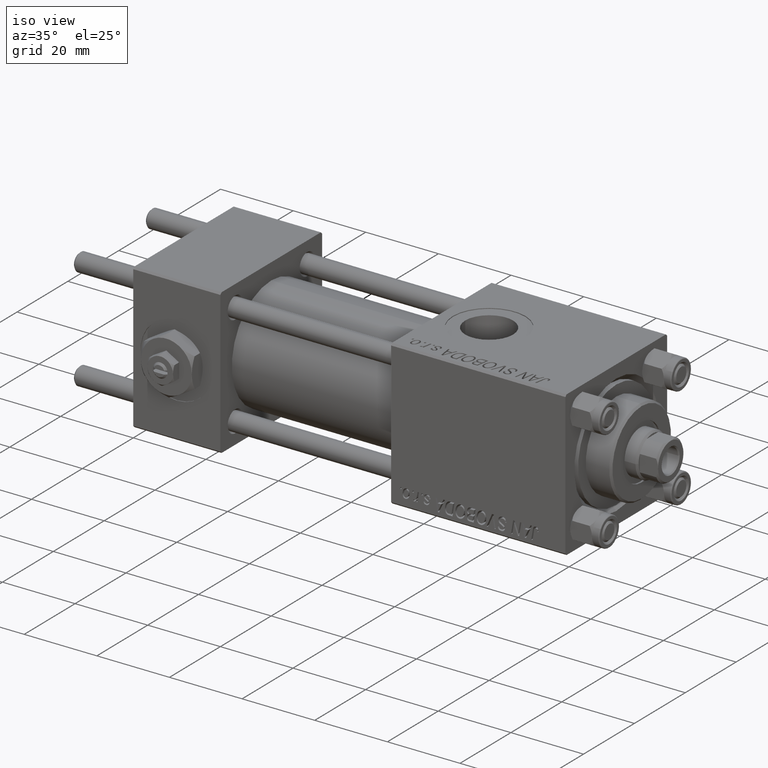
[diagram: clean part render]
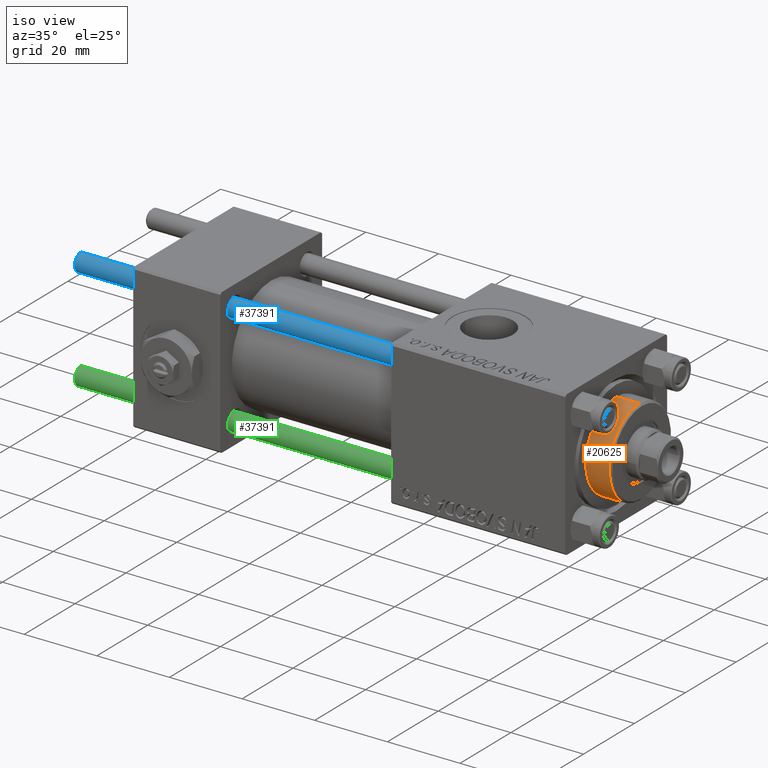
[diagram: same view with three faces highlighted in distinct colors, each labeled with its STEP entity id]
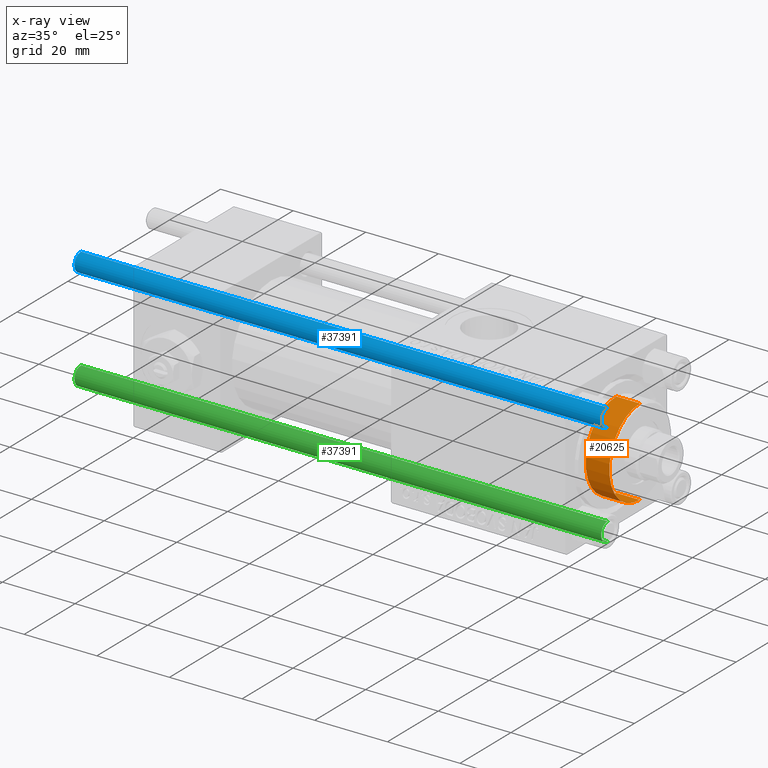
[diagram: x-ray of the same camera — body ghosted, the three highlighted faces saturated]
A machine part, iso view with three faces highlighted in distinct colors.
The next image is the same camera in x-ray (body ghosted, the three faces saturated) — at least one of them is partly hidden behind the body in this view.
Their STEP definitions:

[orange] entity #20625 — the highlighted cylindrical surface (partial cylindrical patch) has radius 12 mm, axis along (-1, -0, 0).
#4524 = CARTESIAN_POINT ( 'NONE',  ( 12.00000000000000178, 1.469576158976824144E-15, 35.19999999999999574 ) ) ;
#6368 = CARTESIAN_POINT ( 'NONE',  ( -12.00000000000000178, 0.000000000000000000, 35.19999999999999574 ) ) ;
#6909 = DIRECTION ( 'NONE',  ( 0.000000000000000000, 0.000000000000000000, 1.000000000000000000 ) ) ;
#7834 = VERTEX_POINT ( 'NONE', #4524 ) ;
#10142 = DIRECTION ( 'NONE',  ( -0.000000000000000000, -0.000000000000000000, -1.000000000000000000 ) ) ;
#10552 = CYLINDRICAL_SURFACE ( 'NONE', #13823, 12.00000000000000178 ) ;
#12129 = DIRECTION ( 'NONE',  ( 1.000000000000000000, 0.000000000000000000, 0.000000000000000000 ) ) ;
#13823 = AXIS2_PLACEMENT_3D ( 'NONE', #33968, #49852, #17830 ) ;
#14078 = DIRECTION ( 'NONE',  ( 1.000000000000000000, 0.000000000000000000, 0.000000000000000000 ) ) ;
#15444 = ORIENTED_EDGE ( 'NONE', *, *, #37216, .T. ) ;
#16842 = ORIENTED_EDGE ( 'NONE', *, *, #21995, .F. ) ;
#17758 = VECTOR ( 'NONE', #10142, 1000.000000000000000 ) ;
#17830 = DIRECTION ( 'NONE',  ( -1.000000000000000000, 0.000000000000000000, 0.000000000000000000 ) ) ;
#19146 = CARTESIAN_POINT ( 'NONE',  ( 12.00000000000000178, 1.469576158976824144E-15, 35.70000000000000284 ) ) ;
#20507 = ORIENTED_EDGE ( 'NONE', *, *, #24453, .T. ) ;
#20625 = ADVANCED_FACE ( 'NONE', ( #46213 ), #10552, .T. ) ;
#20991 = EDGE_CURVE ( 'NONE', #7834, #45486, #43717, .T. ) ;
#21278 = AXIS2_PLACEMENT_3D ( 'NONE', #29947, #21874, #14078 ) ;
#21849 = LINE ( 'NONE', #26956, #17758 ) ;
#21874 = DIRECTION ( 'NONE',  ( 0.000000000000000000, 0.000000000000000000, -1.000000000000000000 ) ) ;
#21995 = EDGE_CURVE ( 'NONE', #7834, #29601, #38947, .T. ) ;
#22411 = EDGE_LOOP ( 'NONE', ( #16842, #35112, #15444, #20507 ) ) ;
#23903 = CIRCLE ( 'NONE', #26396, 12.00000000000000178 ) ;
#24453 = EDGE_CURVE ( 'NONE', #45039, #29601, #23903, .T. ) ;
#26396 = AXIS2_PLACEMENT_3D ( 'NONE', #42557, #6909, #12129 ) ;
#26956 = CARTESIAN_POINT ( 'NONE',  ( -12.00000000000000178, 0.000000000000000000, 35.70000000000000284 ) ) ;
#27867 = CARTESIAN_POINT ( 'NONE',  ( 12.00000000000000178, 1.469576158976824144E-15, 28.69999999999999929 ) ) ;
#28807 = VECTOR ( 'NONE', #35030, 1000.000000000000000 ) ;
#29601 = VERTEX_POINT ( 'NONE', #27867 ) ;
#29947 = CARTESIAN_POINT ( 'NONE',  ( 0.000000000000000000, 0.000000000000000000, 35.19999999999999574 ) ) ;
#33968 = CARTESIAN_POINT ( 'NONE',  ( 0.000000000000000000, 0.000000000000000000, 35.70000000000000284 ) ) ;
#35030 = DIRECTION ( 'NONE',  ( -0.000000000000000000, -0.000000000000000000, -1.000000000000000000 ) ) ;
#35112 = ORIENTED_EDGE ( 'NONE', *, *, #20991, .T. ) ;
#37216 = EDGE_CURVE ( 'NONE', #45486, #45039, #21849, .T. ) ;
#38947 = LINE ( 'NONE', #19146, #28807 ) ;
#42557 = CARTESIAN_POINT ( 'NONE',  ( 0.000000000000000000, 0.000000000000000000, 28.69999999999999929 ) ) ;
#43717 = CIRCLE ( 'NONE', #21278, 12.00000000000000178 ) ;
#45039 = VERTEX_POINT ( 'NONE', #48095 ) ;
#45486 = VERTEX_POINT ( 'NONE', #6368 ) ;
#46213 = FACE_OUTER_BOUND ( 'NONE', #22411, .T. ) ;
#48095 = CARTESIAN_POINT ( 'NONE',  ( -12.00000000000000178, 0.000000000000000000, 28.69999999999999929 ) ) ;
#49852 = DIRECTION ( 'NONE',  ( -0.000000000000000000, -0.000000000000000000, -1.000000000000000000 ) ) ;

[blue] entity #37391 — the highlighted cylindrical surface (edge-blend (fillet) strip) has radius 2.5 mm, axis along (1, -0, 0).
#244 = DIRECTION ( 'NONE',  ( -0.000000000000000000, -0.000000000000000000, -1.000000000000000000 ) ) ;
#924 = VERTEX_POINT ( 'NONE', #15930 ) ;
#4747 = AXIS2_PLACEMENT_3D ( 'NONE', #15785, #23585, #44149 ) ;
#7774 = EDGE_LOOP ( 'NONE', ( #21829, #50586, #30102, #50283 ) ) ;
#8628 = AXIS2_PLACEMENT_3D ( 'NONE', #29270, #37870, #41266 ) ;
#12630 = CARTESIAN_POINT ( 'NONE',  ( 0.000000000000000000, 0.000000000000000000, 145.5000000000000284 ) ) ;
#13029 = VECTOR ( 'NONE', #38579, 1000.000000000000000 ) ;
#15785 = CARTESIAN_POINT ( 'NONE',  ( 0.000000000000000000, 0.000000000000000000, 0.5000000000000559552 ) ) ;
#15930 = CARTESIAN_POINT ( 'NONE',  ( 2.500000000000000000, 3.061616997868383141E-16, 145.5000000000000284 ) ) ;
#17615 = CARTESIAN_POINT ( 'NONE',  ( 2.500000000000000000, 3.061616997868383141E-16, 0.5000000000000559552 ) ) ;
#20262 = LINE ( 'NONE', #47092, #20323 ) ;
#20323 = VECTOR ( 'NONE', #244, 1000.000000000000000 ) ;
#21829 = ORIENTED_EDGE ( 'NONE', *, *, #36514, .T. ) ;
#23585 = DIRECTION ( 'NONE',  ( -0.000000000000000000, -0.000000000000000000, 1.000000000000000000 ) ) ;
#23754 = EDGE_CURVE ( 'NONE', #26342, #29791, #27162, .T. ) ;
#25606 = CARTESIAN_POINT ( 'NONE',  ( 2.500000000000000000, 3.061616997868383141E-16, 146.0000000000000000 ) ) ;
#25640 = CYLINDRICAL_SURFACE ( 'NONE', #8628, 2.500000000000000000 ) ;
#26342 = VERTEX_POINT ( 'NONE', #17615 ) ;
#27162 = CIRCLE ( 'NONE', #4747, 2.500000000000000000 ) ;
#29013 = DIRECTION ( 'NONE',  ( 0.000000000000000000, 0.000000000000000000, -1.000000000000000000 ) ) ;
#29270 = CARTESIAN_POINT ( 'NONE',  ( 0.000000000000000000, 0.000000000000000000, 146.0000000000000000 ) ) ;
#29791 = VERTEX_POINT ( 'NONE', #41594 ) ;
#30102 = ORIENTED_EDGE ( 'NONE', *, *, #23754, .T. ) ;
#30641 = VERTEX_POINT ( 'NONE', #46895 ) ;
#33175 = FACE_OUTER_BOUND ( 'NONE', #7774, .T. ) ;
#36514 = EDGE_CURVE ( 'NONE', #30641, #924, #48459, .T. ) ;
#37391 = ADVANCED_FACE ( 'NONE', ( #33175 ), #25640, .T. ) ;
#37870 = DIRECTION ( 'NONE',  ( -0.000000000000000000, -0.000000000000000000, -1.000000000000000000 ) ) ;
#38493 = AXIS2_PLACEMENT_3D ( 'NONE', #12630, #29013, #44901 ) ;
#38579 = DIRECTION ( 'NONE',  ( -0.000000000000000000, -0.000000000000000000, -1.000000000000000000 ) ) ;
#39853 = EDGE_CURVE ( 'NONE', #30641, #29791, #20262, .T. ) ;
#41266 = DIRECTION ( 'NONE',  ( -1.000000000000000000, 0.000000000000000000, 0.000000000000000000 ) ) ;
#41594 = CARTESIAN_POINT ( 'NONE',  ( -2.500000000000000000, 0.000000000000000000, 0.5000000000000559552 ) ) ;
#44149 = DIRECTION ( 'NONE',  ( 1.000000000000000000, 0.000000000000000000, 0.000000000000000000 ) ) ;
#44901 = DIRECTION ( 'NONE',  ( 1.000000000000000000, 0.000000000000000000, 0.000000000000000000 ) ) ;
#45652 = LINE ( 'NONE', #25606, #13029 ) ;
#46895 = CARTESIAN_POINT ( 'NONE',  ( -2.500000000000000000, 0.000000000000000000, 145.5000000000000284 ) ) ;
#47092 = CARTESIAN_POINT ( 'NONE',  ( -2.500000000000000000, 0.000000000000000000, 146.0000000000000000 ) ) ;
#48459 = CIRCLE ( 'NONE', #38493, 2.500000000000000000 ) ;
#48728 = EDGE_CURVE ( 'NONE', #924, #26342, #45652, .T. ) ;
#50283 = ORIENTED_EDGE ( 'NONE', *, *, #39853, .F. ) ;
#50586 = ORIENTED_EDGE ( 'NONE', *, *, #48728, .T. ) ;

[green] entity #37391 — the highlighted cylindrical surface (edge-blend (fillet) strip) has radius 2.5 mm, axis along (-1, 0, 0).
#244 = DIRECTION ( 'NONE',  ( -0.000000000000000000, -0.000000000000000000, -1.000000000000000000 ) ) ;
#924 = VERTEX_POINT ( 'NONE', #15930 ) ;
#4747 = AXIS2_PLACEMENT_3D ( 'NONE', #15785, #23585, #44149 ) ;
#7774 = EDGE_LOOP ( 'NONE', ( #21829, #50586, #30102, #50283 ) ) ;
#8628 = AXIS2_PLACEMENT_3D ( 'NONE', #29270, #37870, #41266 ) ;
#12630 = CARTESIAN_POINT ( 'NONE',  ( 0.000000000000000000, 0.000000000000000000, 145.5000000000000284 ) ) ;
#13029 = VECTOR ( 'NONE', #38579, 1000.000000000000000 ) ;
#15785 = CARTESIAN_POINT ( 'NONE',  ( 0.000000000000000000, 0.000000000000000000, 0.5000000000000559552 ) ) ;
#15930 = CARTESIAN_POINT ( 'NONE',  ( 2.500000000000000000, 3.061616997868383141E-16, 145.5000000000000284 ) ) ;
#17615 = CARTESIAN_POINT ( 'NONE',  ( 2.500000000000000000, 3.061616997868383141E-16, 0.5000000000000559552 ) ) ;
#20262 = LINE ( 'NONE', #47092, #20323 ) ;
#20323 = VECTOR ( 'NONE', #244, 1000.000000000000000 ) ;
#21829 = ORIENTED_EDGE ( 'NONE', *, *, #36514, .T. ) ;
#23585 = DIRECTION ( 'NONE',  ( -0.000000000000000000, -0.000000000000000000, 1.000000000000000000 ) ) ;
#23754 = EDGE_CURVE ( 'NONE', #26342, #29791, #27162, .T. ) ;
#25606 = CARTESIAN_POINT ( 'NONE',  ( 2.500000000000000000, 3.061616997868383141E-16, 146.0000000000000000 ) ) ;
#25640 = CYLINDRICAL_SURFACE ( 'NONE', #8628, 2.500000000000000000 ) ;
#26342 = VERTEX_POINT ( 'NONE', #17615 ) ;
#27162 = CIRCLE ( 'NONE', #4747, 2.500000000000000000 ) ;
#29013 = DIRECTION ( 'NONE',  ( 0.000000000000000000, 0.000000000000000000, -1.000000000000000000 ) ) ;
#29270 = CARTESIAN_POINT ( 'NONE',  ( 0.000000000000000000, 0.000000000000000000, 146.0000000000000000 ) ) ;
#29791 = VERTEX_POINT ( 'NONE', #41594 ) ;
#30102 = ORIENTED_EDGE ( 'NONE', *, *, #23754, .T. ) ;
#30641 = VERTEX_POINT ( 'NONE', #46895 ) ;
#33175 = FACE_OUTER_BOUND ( 'NONE', #7774, .T. ) ;
#36514 = EDGE_CURVE ( 'NONE', #30641, #924, #48459, .T. ) ;
#37391 = ADVANCED_FACE ( 'NONE', ( #33175 ), #25640, .T. ) ;
#37870 = DIRECTION ( 'NONE',  ( -0.000000000000000000, -0.000000000000000000, -1.000000000000000000 ) ) ;
#38493 = AXIS2_PLACEMENT_3D ( 'NONE', #12630, #29013, #44901 ) ;
#38579 = DIRECTION ( 'NONE',  ( -0.000000000000000000, -0.000000000000000000, -1.000000000000000000 ) ) ;
#39853 = EDGE_CURVE ( 'NONE', #30641, #29791, #20262, .T. ) ;
#41266 = DIRECTION ( 'NONE',  ( -1.000000000000000000, 0.000000000000000000, 0.000000000000000000 ) ) ;
#41594 = CARTESIAN_POINT ( 'NONE',  ( -2.500000000000000000, 0.000000000000000000, 0.5000000000000559552 ) ) ;
#44149 = DIRECTION ( 'NONE',  ( 1.000000000000000000, 0.000000000000000000, 0.000000000000000000 ) ) ;
#44901 = DIRECTION ( 'NONE',  ( 1.000000000000000000, 0.000000000000000000, 0.000000000000000000 ) ) ;
#45652 = LINE ( 'NONE', #25606, #13029 ) ;
#46895 = CARTESIAN_POINT ( 'NONE',  ( -2.500000000000000000, 0.000000000000000000, 145.5000000000000284 ) ) ;
#47092 = CARTESIAN_POINT ( 'NONE',  ( -2.500000000000000000, 0.000000000000000000, 146.0000000000000000 ) ) ;
#48459 = CIRCLE ( 'NONE', #38493, 2.500000000000000000 ) ;
#48728 = EDGE_CURVE ( 'NONE', #924, #26342, #45652, .T. ) ;
#50283 = ORIENTED_EDGE ( 'NONE', *, *, #39853, .F. ) ;
#50586 = ORIENTED_EDGE ( 'NONE', *, *, #48728, .T. ) ;